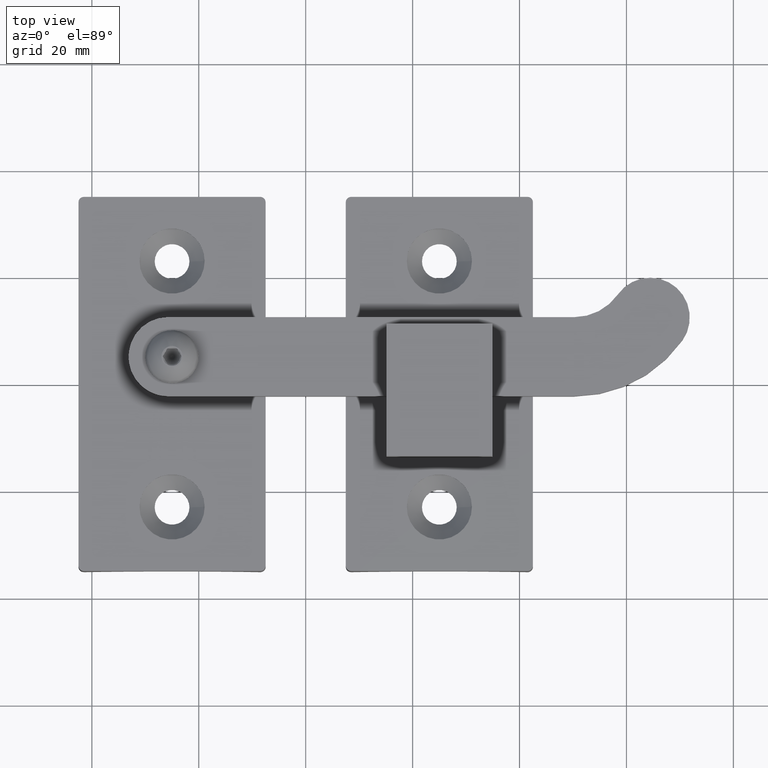
[diagram: clean part render]
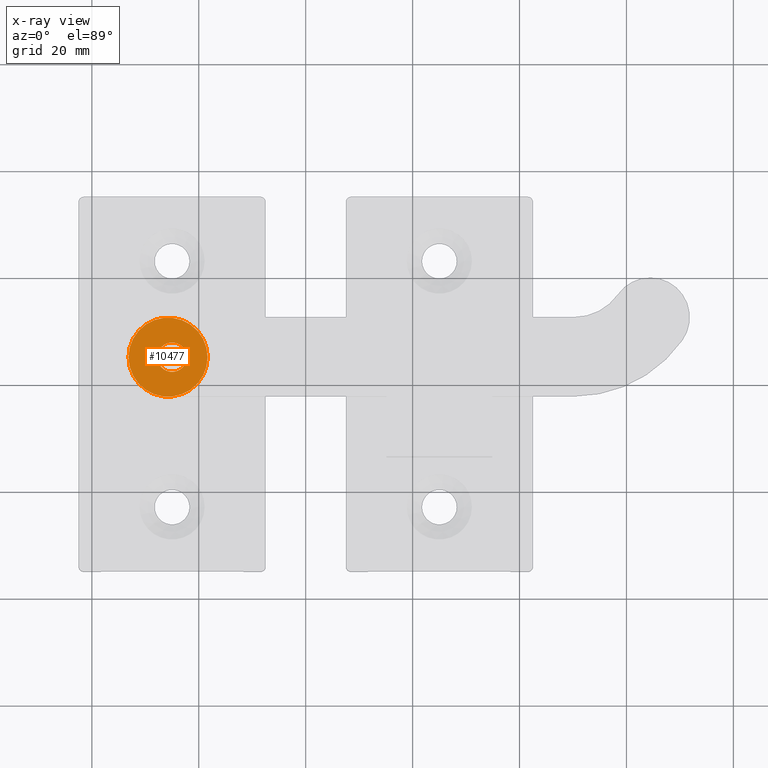
[diagram: x-ray — body ghosted, one internal face saturated and labeled with its STEP entity id]
A machine part, top view, then the same camera in x-ray: the body is ghosted and one INTERNAL B-rep face — a face not visible from any outside direction — is saturated and labeled: STEP entity #10477.
In plain terms, the highlighted planar face has unit normal (-0, 0, -1).
Its self-contained STEP definition (entity closure, byte-faithful):
#106 = DIRECTION ( 'NONE',  ( -2.821186441973490019E-37, 1.128474576789396008E-36, -1.000000000000000000 ) ) ;
#297 = CARTESIAN_POINT ( 'NONE',  ( 44.34546788749680957, -8.673617379884035472E-16, -3.250000000000000000 ) ) ;
#349 = ORIENTED_EDGE ( 'NONE', *, *, #13678, .F. ) ;
#461 = FACE_OUTER_BOUND ( 'NONE', #11062, .T. ) ;
#2316 = DIRECTION ( 'NONE',  ( -1.000000000000000000, 4.283082511115098947E-43, -2.350988701644578357E-37 ) ) ;
#3058 = EDGE_CURVE ( 'NONE', #14248, #14248, #11981, .T. ) ;
#3658 = PLANE ( 'NONE',  #4258 ) ;
#4059 = DIRECTION ( 'NONE',  ( -1.000000000000000000, 0.000000000000000000, 0.000000000000000000 ) ) ;
#4258 = AXIS2_PLACEMENT_3D ( 'NONE', #18246, #13935, #2316 ) ;
#5090 = CIRCLE ( 'NONE', #17774, 2.749999999999995559 ) ;
#5618 = CARTESIAN_POINT ( 'NONE',  ( 41.59546788749681667, -8.673617379884035472E-16, -3.250000000000000000 ) ) ;
#6599 = FACE_BOUND ( 'NONE', #10525, .T. ) ;
#8404 = CARTESIAN_POINT ( 'NONE',  ( 45.09546788749680957, -7.806255641895631925E-15, -3.250000000000000000 ) ) ;
#9736 = CARTESIAN_POINT ( 'NONE',  ( 37.69546788749681809, -7.806255641895631925E-15, -3.250000000000000000 ) ) ;
#10334 = VERTEX_POINT ( 'NONE', #5618 ) ;
#10363 = AXIS2_PLACEMENT_3D ( 'NONE', #8404, #18600, #4059 ) ;
#10369 = DIRECTION ( 'NONE',  ( -1.000000000000000000, 0.000000000000000000, 0.000000000000000000 ) ) ;
#10477 = ADVANCED_FACE ( 'NONE', ( #461, #6599 ), #3658, .T. ) ;
#10525 = EDGE_LOOP ( 'NONE', ( #349 ) ) ;
#11062 = EDGE_LOOP ( 'NONE', ( #17931 ) ) ;
#11981 = CIRCLE ( 'NONE', #10363, 7.399999999999996803 ) ;
#13678 = EDGE_CURVE ( 'NONE', #10334, #10334, #5090, .T. ) ;
#13935 = DIRECTION ( 'NONE',  ( 2.350988701644578357E-37, 1.128474576789396008E-36, -1.000000000000000000 ) ) ;
#14248 = VERTEX_POINT ( 'NONE', #9736 ) ;
#17774 = AXIS2_PLACEMENT_3D ( 'NONE', #297, #106, #10369 ) ;
#17931 = ORIENTED_EDGE ( 'NONE', *, *, #3058, .T. ) ;
#18246 = CARTESIAN_POINT ( 'NONE',  ( 45.09546788749680957, -7.806255641895631925E-15, -3.250000000000000000 ) ) ;
#18600 = DIRECTION ( 'NONE',  ( -2.821186441973490019E-37, 1.128474576789396008E-36, -1.000000000000000000 ) ) ;